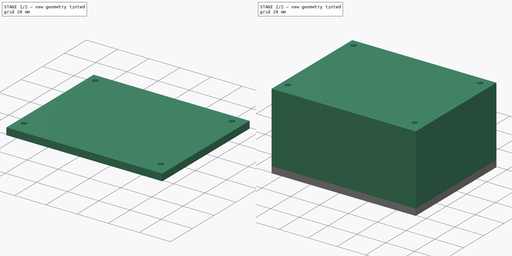
[diagram: build sequence overview — one tinted view per stage of 2, left to right]
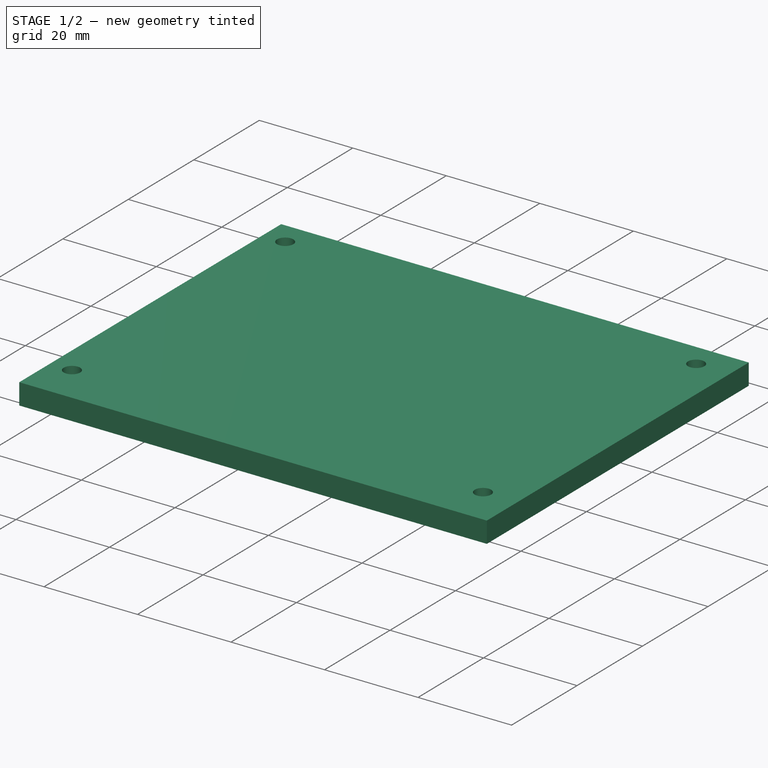
[diagram: stage 1 of 2 — iso view after this stage's code; geometry added in this stage tinted green]
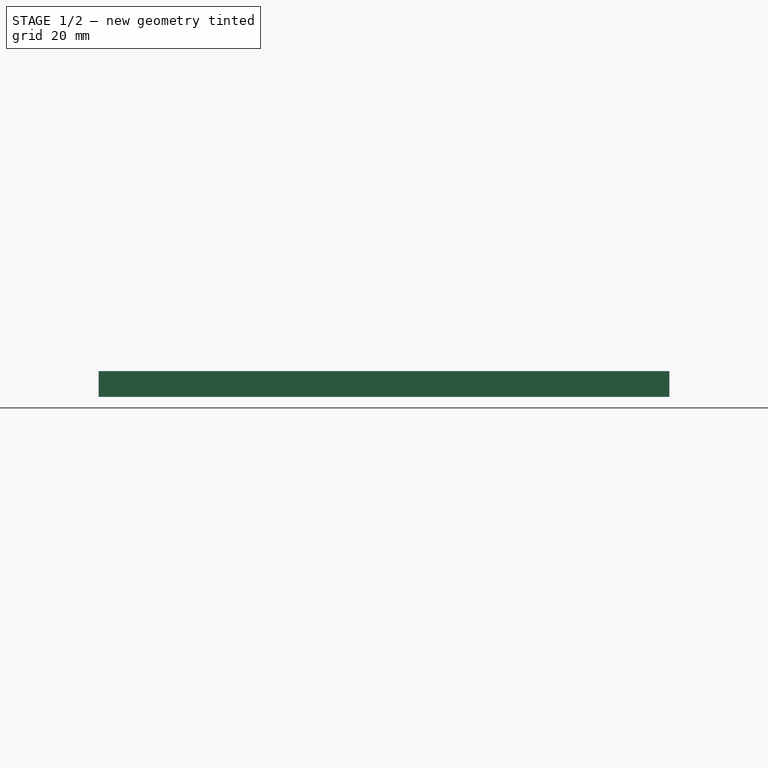
[diagram: stage 1 of 2 — front view after this stage's code; geometry added in this stage tinted green]
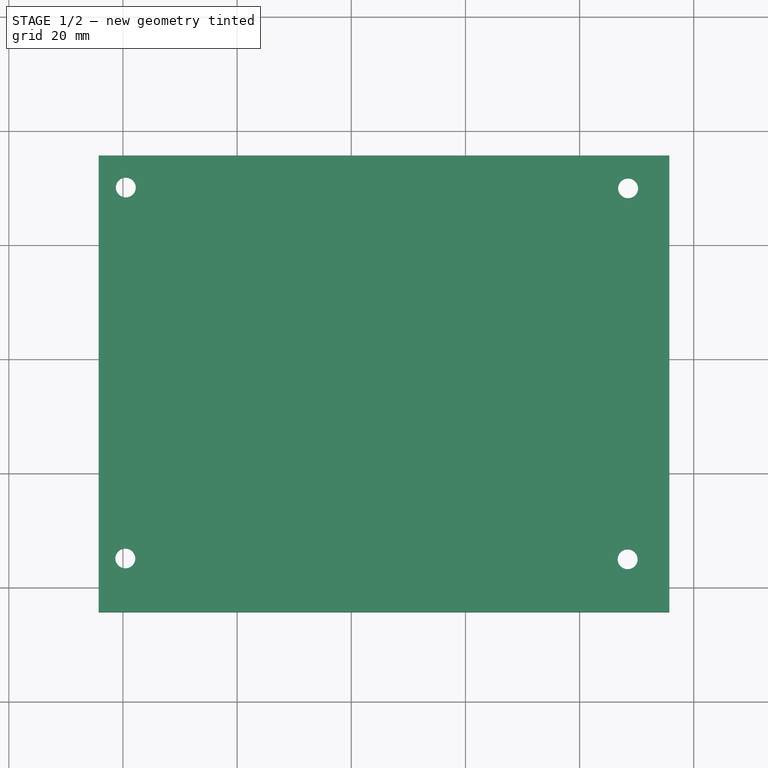
[diagram: stage 1 of 2 — top view after this stage's code; geometry added in this stage tinted green]
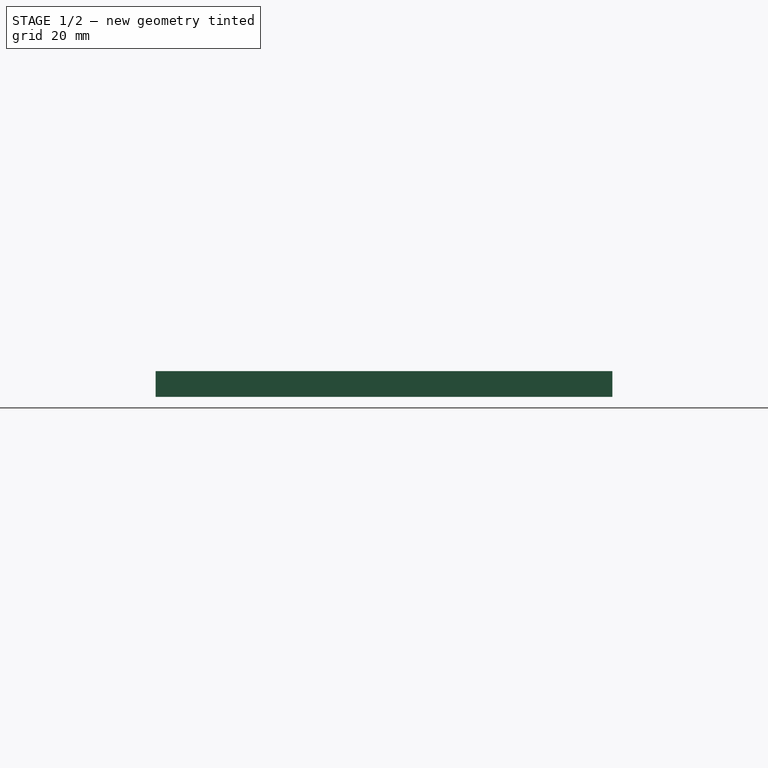
[diagram: stage 1 of 2 — right view after this stage's code; geometry added in this stage tinted green]
FCSTD DOCUMENT  (FreeCAD 0.18R4 (GitTag))
Label: Gabinete
License: All rights reserved
LicenseURL: http://en.wikipedia.org/wiki/All_rights_reserved
objects: Sketcher::SketchObject×3, PartDesign::Pad×3, PartDesign::Chamfer×1, TechDraw::DrawSVGTemplate×1, TechDraw::DrawPage×1, PartDesign::Body×1
note: 11 computed .brp shape members not serialized (recipe doc carries the construction recipe); baked Part::Feature solids carry a one-line shape summary decoded from their .brp

FEATURE [Sketcher::SketchObject] Sketch
  MapMode = 5
  Support = -> [XY_Plane]
  sketch-geometry (8):
    g0: LineSegment StartX=-64.2662 StartY=35.6697 StartZ=0 EndX=35.7338 EndY=35.6697 EndZ=0
    g1: LineSegment StartX=35.7338 StartY=35.6697 StartZ=0 EndX=35.7338 EndY=-44.3303 EndZ=0
    g2: LineSegment StartX=35.7338 StartY=-44.3303 StartZ=0 EndX=-64.2662 EndY=-44.3303 EndZ=0
    g3: LineSegment StartX=-64.2662 StartY=-44.3303 StartZ=0 EndX=-64.2662 EndY=35.6697 EndZ=0
    g4: Circle CenterX=-59.4993 CenterY=30.084 CenterZ=0 NormalX=0 NormalY=0 NormalZ=1 AngleXU=0 Radius=1.75
    g5: Circle CenterX=28.5007 CenterY=29.9374 CenterZ=0 NormalX=0 NormalY=0 NormalZ=1 AngleXU=0 Radius=1.75
    g6: Circle CenterX=-59.5841 CenterY=-34.9159 CenterZ=0 NormalX=0 NormalY=0 NormalZ=1 AngleXU=0 Radius=1.75
    g7: Circle CenterX=28.4159 CenterY=-35.0625 CenterZ=0 NormalX=0 NormalY=0 NormalZ=1 AngleXU=0 Radius=1.75
  constraints (18):
    c: Coincident(g0,g1)
    c: Coincident(g1,g2)
    c: Coincident(g2,g3)
    c: Coincident(g3,g0)
    c: Horizontal(g0)
    c: Horizontal(g2)
    c: Vertical(g1)
    c: Vertical(g3)
    c: Distance(g2) = 100
    c: Distance(g1) = 80
    c: DistanceX(g4,g5) = 88
    c: Radius(g4) = 1.75
    c: Radius(g5) = 1.75
    c: DistanceX(g6,g7) = 88
    c: Equal(g4,g6) = 1.75
    c: Equal(g5,g7) = 1.75
    c: Distance(g5,g7) = 65
    c: Distance(g4,g6) = 65
FEATURE [PartDesign::Pad] Pad
  Length = 4.5
  Length2 = 100
  Profile = -> Sketch
  Type = 0
FEATURE [PartDesign::Chamfer] Chamfer
  Base = -> Pad [Edge17,Edge14,Edge20,Edge23]
  BaseFeature = -> Pad
  Size = 1.5
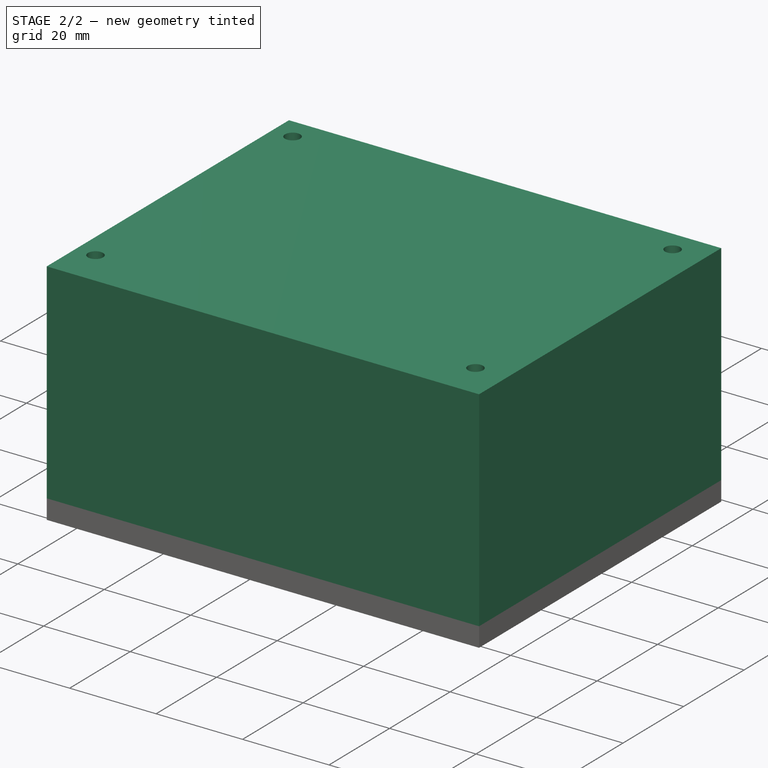
[diagram: stage 2 of 2 — iso view after this stage's code; geometry added in this stage tinted green]
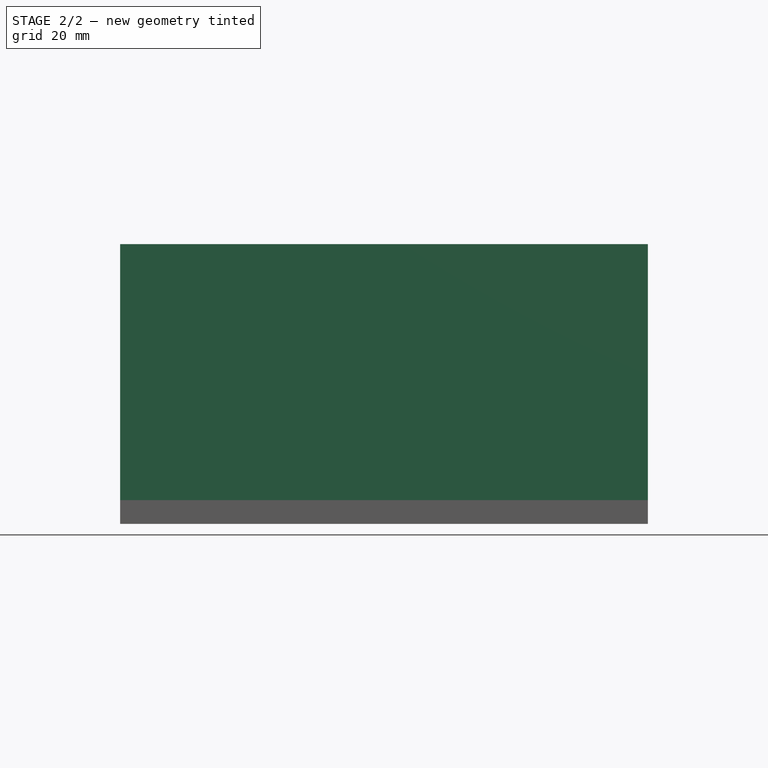
[diagram: stage 2 of 2 — front view after this stage's code; geometry added in this stage tinted green]
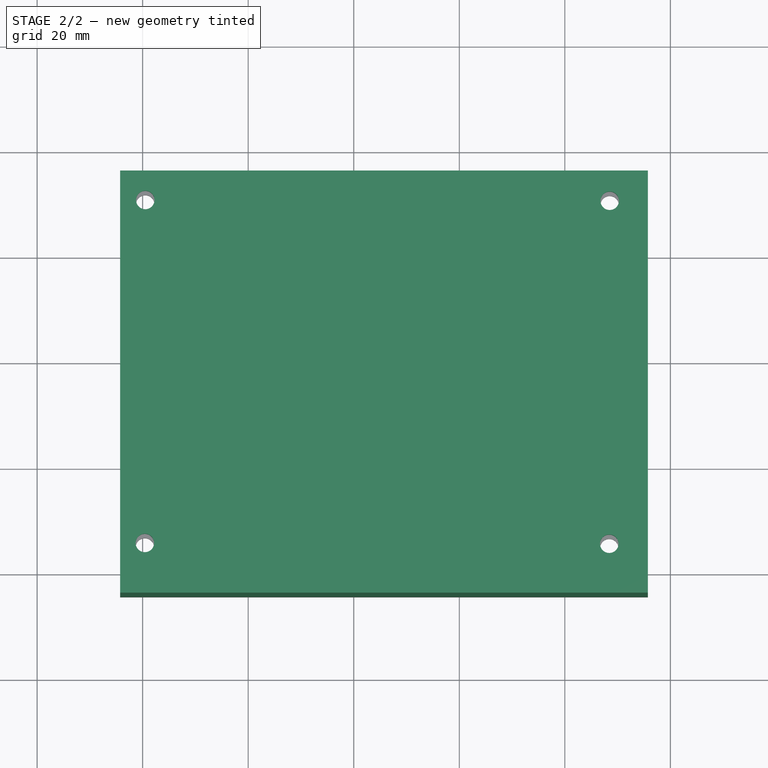
[diagram: stage 2 of 2 — top view after this stage's code; geometry added in this stage tinted green]
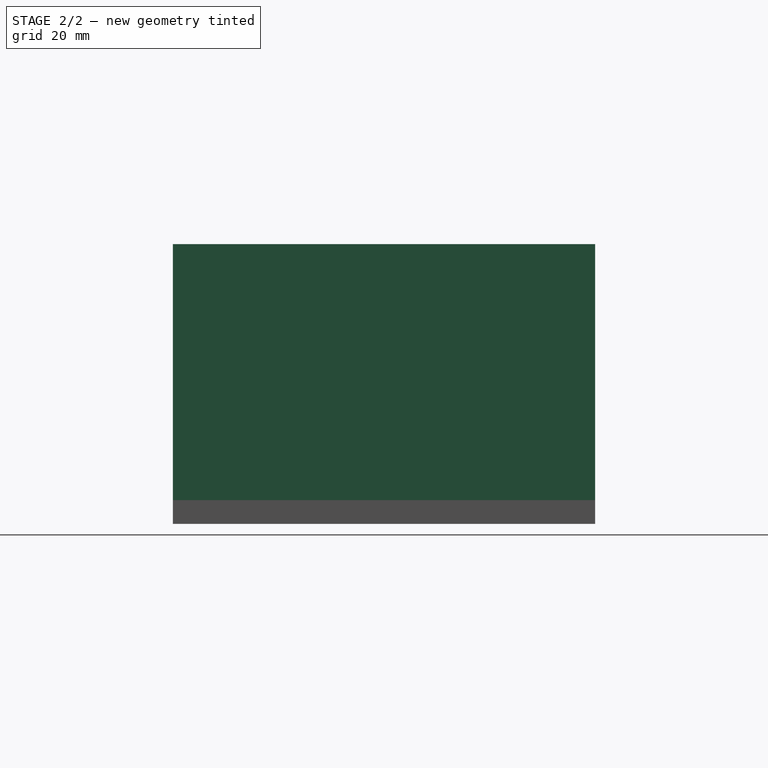
[diagram: stage 2 of 2 — right view after this stage's code; geometry added in this stage tinted green]
FEATURE [Sketcher::SketchObject] Sketch001
  ExternalGeometry = -> [Chamfer]
  MapMode = 5
  Placement = pos=(0,0,4.5) rot=(0,0,1;0rad)
  Support = -> [Chamfer]
  sketch-geometry (8):
    g0: LineSegment StartX=-64.2662 StartY=35.6697 StartZ=0 EndX=35.7338 EndY=35.6697 EndZ=0
    g1: LineSegment StartX=35.7338 StartY=35.6697 StartZ=0 EndX=35.7338 EndY=-44.3303 EndZ=0
    g2: LineSegment StartX=35.7338 StartY=-44.3303 StartZ=0 EndX=-64.2662 EndY=-44.3303 EndZ=0
    g3: LineSegment StartX=-64.2662 StartY=-44.3303 StartZ=0 EndX=-64.2662 EndY=35.6697 EndZ=0
    g4: LineSegment StartX=-62.7662 StartY=34.1697 StartZ=0 EndX=34.2338 EndY=34.1697 EndZ=0
    g5: LineSegment StartX=34.2338 StartY=34.1697 StartZ=0 EndX=34.2338 EndY=-42.8303 EndZ=0
    g6: LineSegment StartX=34.2338 StartY=-42.8303 StartZ=0 EndX=-62.7662 EndY=-42.8303 EndZ=0
    g7: LineSegment StartX=-62.7662 StartY=-42.8303 StartZ=0 EndX=-62.7662 EndY=34.1697 EndZ=0
  constraints (21):
    c: Coincident(g0,g1)
    c: Coincident(g1,g2)
    c: Coincident(g2,g3)
    c: Coincident(g3,g0)
    c: Horizontal(g0)
    c: Vertical(g3)
    c: Coincident(g4,g5)
    c: Coincident(g5,g6)
    c: Coincident(g6,g7)
    c: Coincident(g7,g4)
    c: Horizontal(g4)
    c: Horizontal(g6)
    c: Vertical(g5)
    c: Vertical(g7)
    c: Coincident(g0,g-5)
    c: Coincident(g1,g-6)
    c: Coincident(g2,g-6)
    c: DistanceY(g7,g7) = 77
    c: DistanceY(g4,g0) = 1.5
    c: DistanceX(g4,g4) = 97
    c: DistanceX(g4,g0) = 1.5
FEATURE [PartDesign::Pad] Pad001
  BaseFeature = -> Chamfer
  Length = 45
  Length2 = 100
  Profile = -> Sketch001
  Type = 0
FEATURE [TechDraw::DrawSVGTemplate] Template
  EditableTexts = Designed_by_Name=Designed by Name; Drawing_number=Drawing number; FC-Date=Date; FC-SC=Scale; FC-SH=Sheet; FC-Title=Title; Subtitle=Subtitle; Weight=Weight
  Height = 210
  Orientation = 1
  Width = 297
FEATURE [TechDraw::DrawPage] Page
  KeepUpdated = true
  ProjectionType = 0
  Template = -> Template
FEATURE [Sketcher::SketchObject] Sketch002
  ExternalGeometry = -> [Pad001]
  MapMode = 5
  Placement = pos=(0,0,49.5) rot=(0,0,1;0rad)
  Support = -> [Pad001]
  sketch-geometry (8):
    g0: LineSegment StartX=-64.2662 StartY=35.6697 StartZ=0 EndX=35.7338 EndY=35.6697 EndZ=0
    g1: LineSegment StartX=35.7338 StartY=35.6697 StartZ=0 EndX=35.7338 EndY=-44.3303 EndZ=0
    g2: LineSegment StartX=35.7338 StartY=-44.3303 StartZ=0 EndX=-64.2662 EndY=-44.3303 EndZ=0
    g3: LineSegment StartX=-64.2662 StartY=-44.3303 StartZ=0 EndX=-64.2662 EndY=35.6697 EndZ=0
    g4: Circle CenterX=-59.4993 CenterY=30.084 CenterZ=0 NormalX=0 NormalY=0 NormalZ=1 AngleXU=0 Radius=1.75
    g5: Circle CenterX=-59.5841 CenterY=-34.9159 CenterZ=0 NormalX=0 NormalY=0 NormalZ=1 AngleXU=0 Radius=1.75
    g6: Circle CenterX=28.5007 CenterY=29.9374 CenterZ=0 NormalX=0 NormalY=0 NormalZ=1 AngleXU=0 Radius=1.75
    g7: Circle CenterX=28.4159 CenterY=-35.0625 CenterZ=0 NormalX=0 NormalY=0 NormalZ=1 AngleXU=0 Radius=1.75
  constraints (18):
    c: Coincident(g0,g1)
    c: Coincident(g1,g2)
    c: Coincident(g2,g3)
    c: Coincident(g3,g0)
    c: Horizontal(g0)
    c: Horizontal(g2)
    c: Vertical(g1)
    c: Vertical(g3)
    c: Coincident(g0,g-9)
    c: Coincident(g1,g-8)
    c: Radius(g4) = 1.75
    c: Coincident(g4,g-11)
    c: Equal(g4,g5) = 1.75
    c: Coincident(g5,g-6)
    c: Equal(g4,g6) = 1.75
    c: Equal(g6,g7) = 1.75
    c: Coincident(g7,g-7)
    c: Coincident(g6,g-12)
FEATURE [PartDesign::Pad] Pad002
  BaseFeature = -> Pad001
  Length = 3.5
  Length2 = 100
  Profile = -> Sketch002
  Type = 0
FEATURE [PartDesign::Body] Body
  Group = -> [Sketch,Pad,Chamfer,Sketch001,Pad001,Sketch002,Pad002]
  Origin = -> Origin
  Tip = -> Pad002
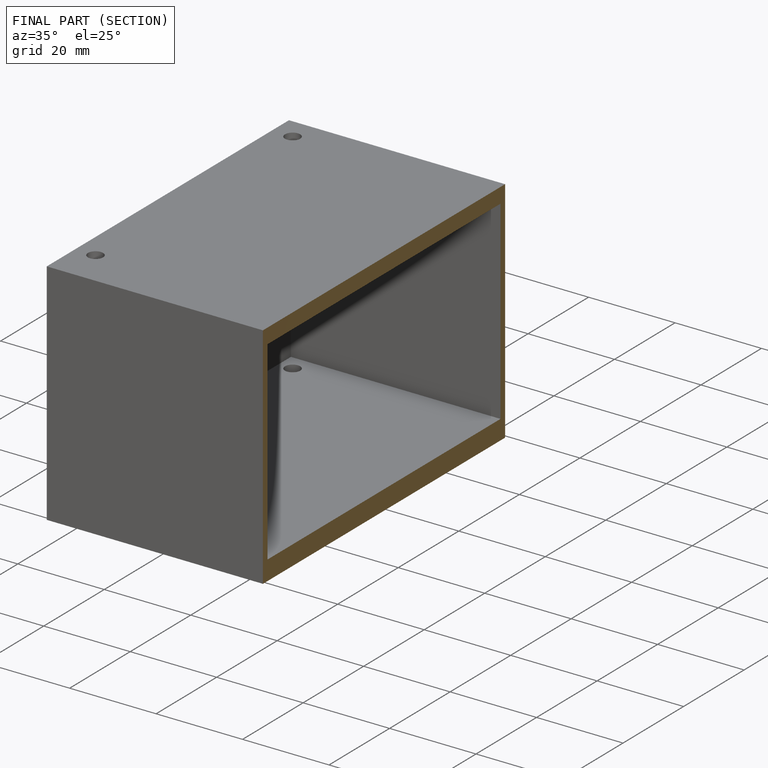
[diagram: finished part — half-section view (interior)]
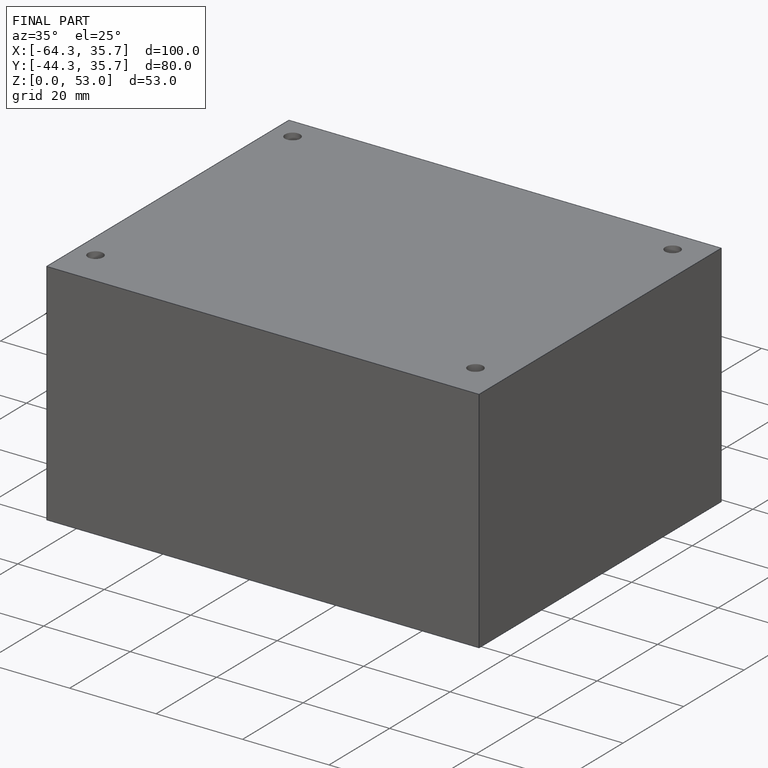
[diagram: finished part — iso view with bounding-box wireframe]
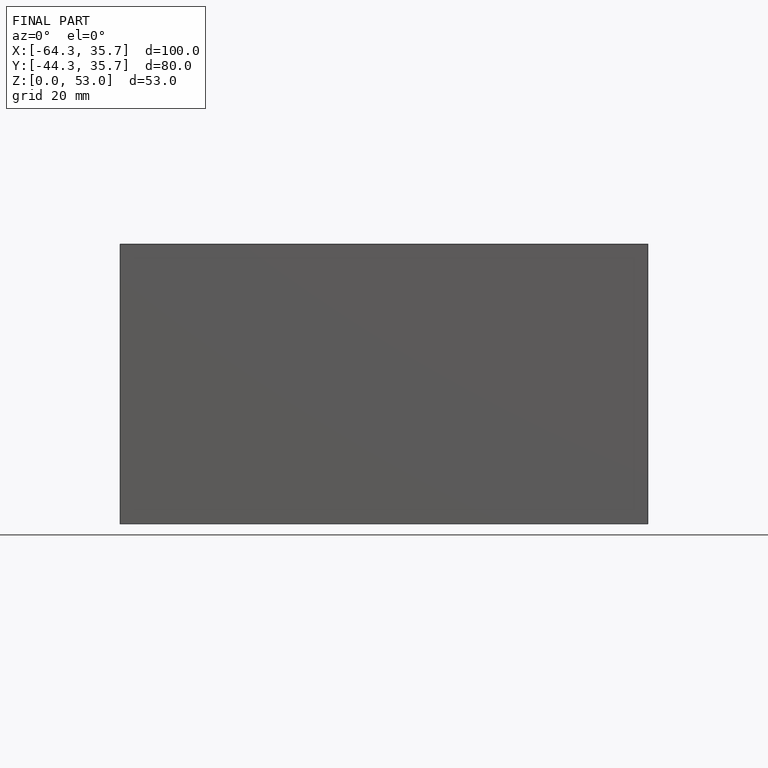
[diagram: finished part — front view with bounding-box wireframe]
